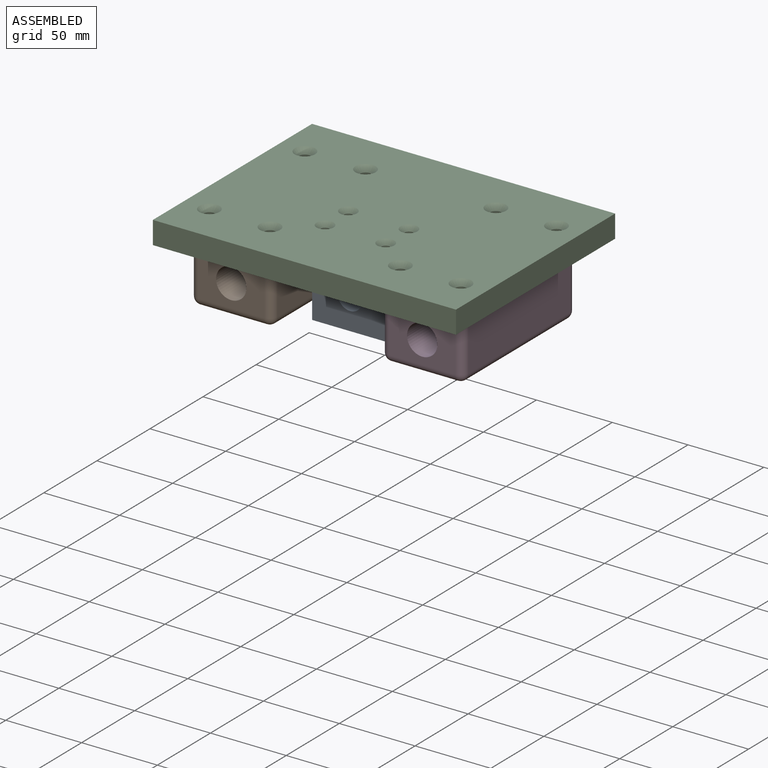
[diagram: assembled view]
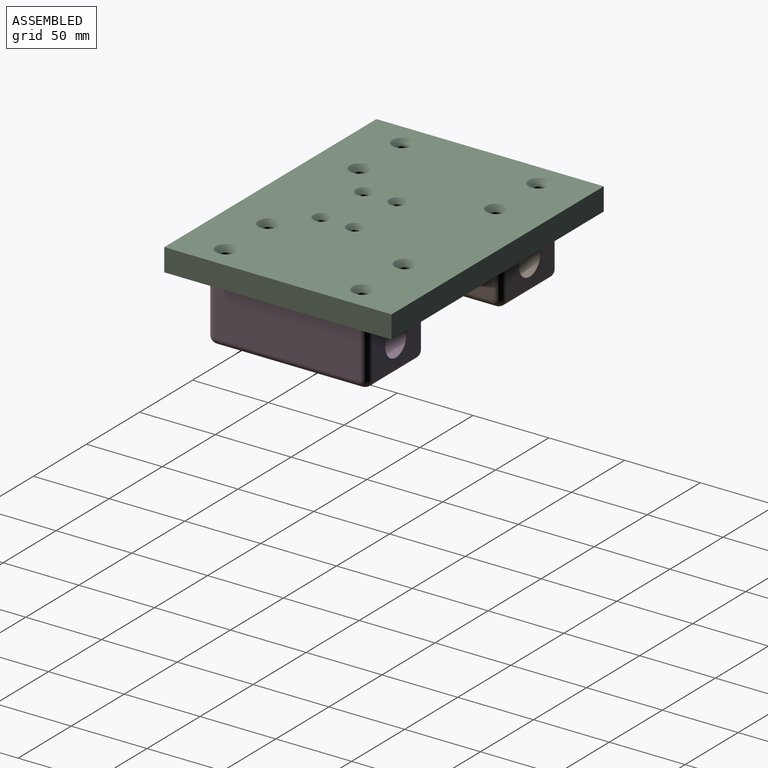
[diagram: assembled view, second angle]
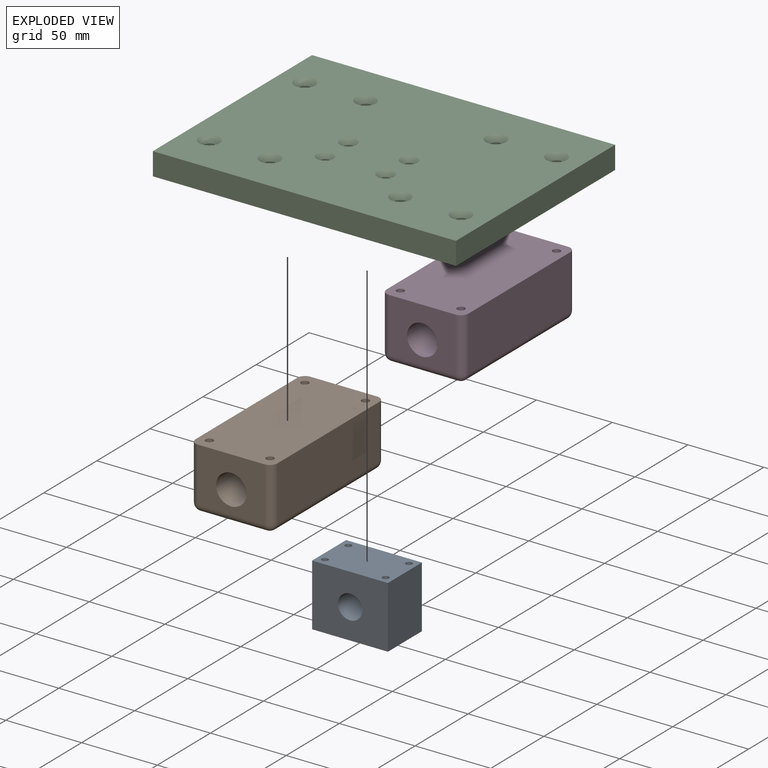
[diagram: exploded view]
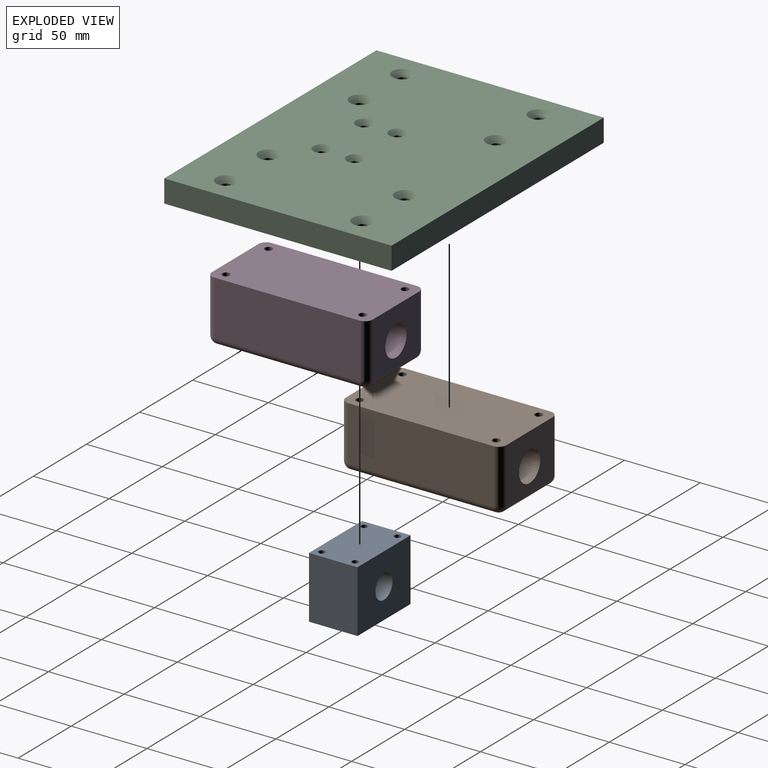
[diagram: exploded view, second angle]
ASSEMBLY  parts=4 mates=3
PART A: 15 faces, bbox 50x32x41 mm
  f0: plane 50x32mm, normal (0,0,-1), area 1600mm2, adj f1,f4,f5,f6
  f1: plane 41x32mm, normal (1,0,0), area 1312mm2, adj f0,f2,f5,f6
  f2: plane 50x32mm, normal (0,0,1), area 1544.6mm2, adj f1,f4,f5,f6,f7,f9,f11,f13
  f3: cylinder r=8mm len=32mm, axis (0,1,0), area 1608.5mm2, adj f5,f6
  f4: plane 41x32mm, normal (-1,0,0), area 1312mm2, adj f0,f2,f5,f6
  f5: plane 50x41mm, normal (0,-1,0), area 1848.9mm2, adj f0,f1,f2,f3,f4
  f6: plane 50x41mm, normal (0,1,0), area 1848.9mm2, adj f0,f1,f2,f3,f4
  f7: cylinder r=2.1mm len=14.4mm, axis (0,0,1), area 190mm2, adj f2,f8
  f8: cone r=0mm half-angle=59deg, axis (0,0,1), area 16.2mm2, adj f7
  f9: cylinder r=2.1mm len=14.4mm, axis (0,0,1), area 190mm2, adj f2,f10
  f10: cone r=0mm half-angle=59deg, axis (0,0,1), area 16.2mm2, adj f9
  f11: cylinder r=2.1mm len=14.4mm, axis (0,0,1), area 190mm2, adj f2,f12
  f12: cone r=0mm half-angle=59deg, axis (0,0,1), area 16.2mm2, adj f11
  f13: cylinder r=2.1mm len=14.4mm, axis (0,0,1), area 190mm2, adj f2,f14
  f14: cone r=0mm half-angle=59deg, axis (0,0,1), area 16.2mm2, adj f13
PART B: 23 faces, bbox 54x106x41 mm
  f0: plane 96x36mm, normal (1,0,0), area 3456mm2, adj f1,f11,f12,f13
  f1: plane 106x54mm, normal (0,0,1), area 5624mm2, adj f0,f2,f5,f6,f7,f8,f9,f10
  f2: plane 96x36mm, normal (-1,0,0), area 3456mm2, adj f1,f16,f19,f22
  f3: plane 96x44mm, normal (0,0,-1), area 4149.5mm2, adj f7,f8,f9,f10,f12,f17,f18,f22
  f4: cylinder r=10mm len=106mm, axis (0,1,0), area 6660.2mm2, adj f5,f6
  f5: plane 44x36mm, normal (0,-1,0), area 1269.8mm2, adj f1,f4,f11,f16,f17
  f6: plane 44x36mm, normal (0,1,0), area 1269.8mm2, adj f1,f4,f13,f18,f19
  f7: cylinder r=2.5mm len=41mm, axis (0,0,1), area 644mm2, adj f1,f3,f22
  f8: cylinder r=2.5mm len=41mm, axis (0,0,1), area 644mm2, adj f1,f3,f12
  f9: cylinder r=2.5mm len=41mm, axis (0,0,1), area 644mm2, adj f1,f3,f22
  f10: cylinder r=2.5mm len=41mm, axis (0,0,1), area 644mm2, adj f1,f3,f12
  f11: cylinder r=5mm len=36mm, axis (0,0,-1), area 282.7mm2, adj f0,f1,f5,f14
  f12: cylinder r=5mm len=96mm, axis (0,1,0), area 751.9mm2, adj f0,f3,f8,f10,f14,f15
  f13: cylinder r=5mm len=36mm, axis (0,0,1), area 282.7mm2, adj f0,f1,f6,f15
  f14: sphere r=5mm, area 39.3mm2, adj f11,f12,f17
  f15: sphere r=5mm, area 39.3mm2, adj f12,f13,f18
  f16: cylinder r=5mm len=36mm, axis (0,0,1), area 282.7mm2, adj f1,f2,f5,f20
  f17: cylinder r=5mm len=44mm, axis (-1,0,0), area 345.6mm2, adj f3,f5,f14,f20
  f18: cylinder r=5mm len=44mm, axis (1,0,0), area 345.6mm2, adj f3,f6,f15,f21
  f19: cylinder r=5mm len=36mm, axis (0,0,-1), area 282.7mm2, adj f1,f2,f6,f21
  f20: sphere r=5mm, area 39.3mm2, adj f16,f17,f22
  f21: sphere r=5mm, area 39.3mm2, adj f18,f19,f22
  f22: cylinder r=5mm len=96mm, axis (0,-1,0), area 751.9mm2, adj f2,f3,f7,f9,f20,f21
PART C: 30 faces, bbox 200x150x15 mm
  f0: plane 150x15mm, normal (1,0,0), area 2250mm2, adj f1,f3,f4,f5
  f1: plane 200x15mm, normal (0,1,0), area 3000mm2, adj f0,f2,f4,f5
  f2: plane 150x15mm, normal (-1,0,0), area 2250mm2, adj f1,f3,f4,f5
  f3: plane 200x15mm, normal (0,-1,0), area 3000mm2, adj f0,f2,f4,f5
  f4: plane 200x150mm, normal (0,0,1), area 28471mm2, adj f0,f1,f2,f3,f7,f9,f11,f13
  f5: plane 200x150mm, normal (0,0,-1), area 29631.3mm2, adj f0,f1,f2,f3,f6,f8,f10,f12
  f6: cylinder r=3.3mm len=11.58mm, axis (0,0,1), area 240.1mm2, adj f5,f7
  f7: cone r=3.3mm half-angle=45deg, axis (0,0,1), area 152.3mm2, adj f4,f6
  f8: cylinder r=3.3mm len=11.58mm, axis (0,0,1), area 240.1mm2, adj f5,f9
  f9: cone r=3.3mm half-angle=45deg, axis (0,0,1), area 152.3mm2, adj f4,f8
  f10: cylinder r=3.3mm len=11.58mm, axis (0,0,1), area 240.1mm2, adj f5,f11
  f11: cone r=3.3mm half-angle=45deg, axis (0,0,1), area 152.3mm2, adj f4,f10
  f12: cylinder r=3.3mm len=11.58mm, axis (0,0,1), area 240.1mm2, adj f5,f13
  f13: cone r=3.3mm half-angle=45deg, axis (0,0,1), area 152.3mm2, adj f4,f12
  f14: cylinder r=3.3mm len=11.58mm, axis (0,0,1), area 240.1mm2, adj f5,f15
  f15: cone r=3.3mm half-angle=45deg, axis (0,0,1), area 152.3mm2, adj f4,f14
  f16: cylinder r=3.3mm len=11.58mm, axis (0,0,1), area 240.1mm2, adj f5,f17
  f17: cone r=3.3mm half-angle=45deg, axis (0,0,1), area 152.3mm2, adj f4,f16
  f18: cylinder r=3.3mm len=11.58mm, axis (0,0,1), area 240.1mm2, adj f5,f19
  f19: cone r=3.3mm half-angle=45deg, axis (0,0,1), area 152.3mm2, adj f4,f18
  f20: cylinder r=3.3mm len=11.58mm, axis (0,0,1), area 240.1mm2, adj f5,f21
  f21: cone r=3.3mm half-angle=45deg, axis (0,0,1), area 152.3mm2, adj f4,f20
  f22: cylinder r=2.75mm len=12.15mm, axis (0,0,1), area 209.9mm2, adj f5,f23
  f23: cone r=2.75mm half-angle=45deg, axis (0,0,1), area 105.7mm2, adj f4,f22
  f24: cylinder r=2.75mm len=12.15mm, axis (0,0,1), area 209.9mm2, adj f5,f25
  f25: cone r=2.75mm half-angle=45deg, axis (0,0,1), area 105.7mm2, adj f4,f24
  f26: cylinder r=2.75mm len=12.15mm, axis (0,0,1), area 209.9mm2, adj f5,f27
  f27: cone r=2.75mm half-angle=45deg, axis (0,0,1), area 105.7mm2, adj f4,f26
  f28: cylinder r=2.75mm len=12.15mm, axis (0,0,1), area 209.9mm2, adj f5,f29
  f29: cone r=2.75mm half-angle=45deg, axis (0,0,1), area 105.7mm2, adj f4,f28
PART D: same geometry as B
PLACE A t=(-51.32,15.45,39.62)mm
PLACE B t=(-114.32,67.45,39.62)mm
PLACE C t=(-51.32,15.45,60.12)mm fixed
PLACE D t=(11.68,67.45,39.62)mm
MATE fastened B.f9 <-> C.f10  axis (0,0,1) through (-134.32,-30.55,60.12)mm
MATE fastened D.f9 <-> C.f18  axis (0,0,1) through (-8.32,-30.55,60.12)mm
MATE fastened A.f13 <-> C.f22  axis (0,0,1) through (-71.32,-11.55,60.12)mm
